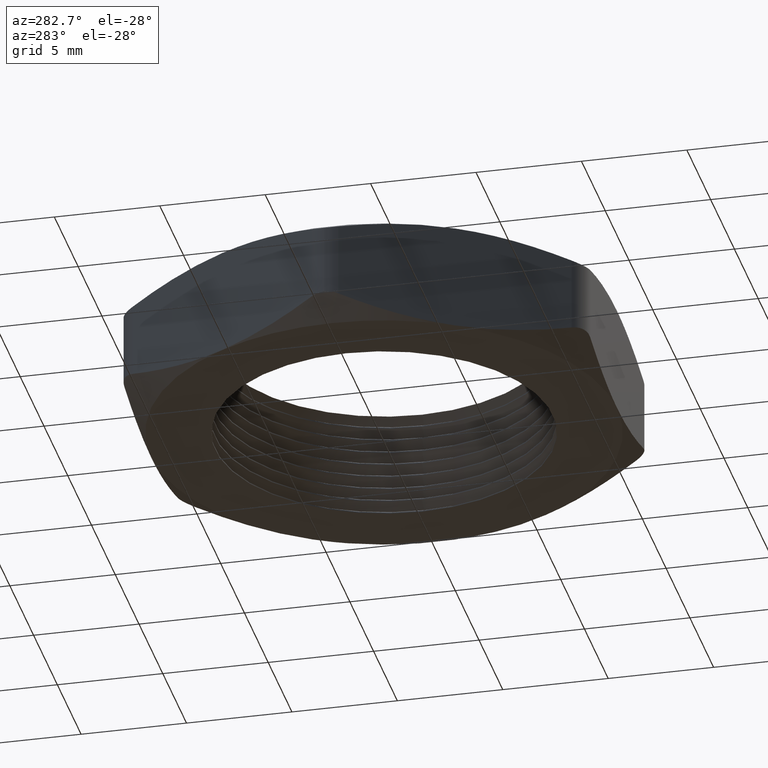
[diagram: clean part render]
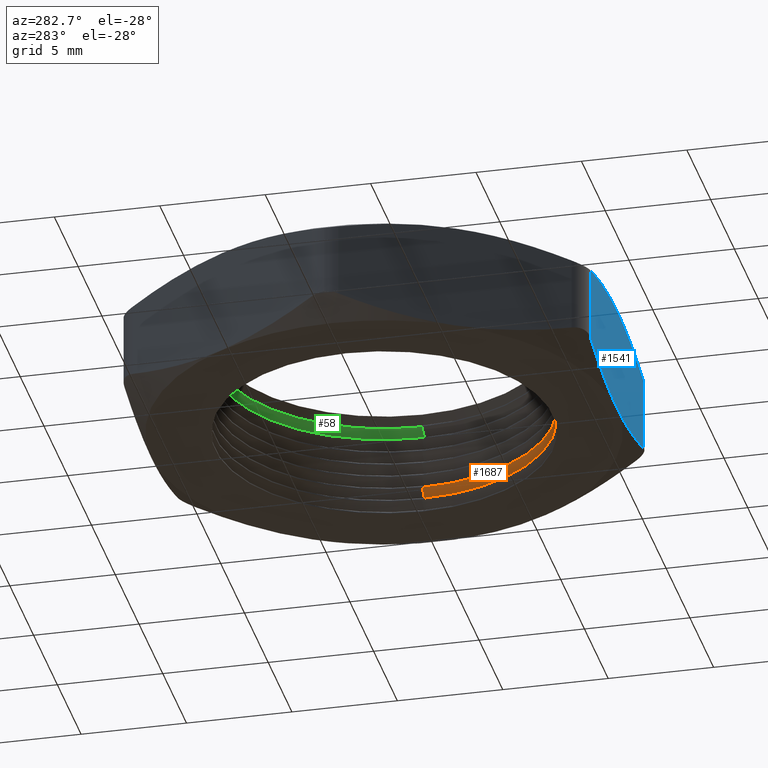
[diagram: same view with three faces highlighted in distinct colors, each labeled with its STEP entity id]
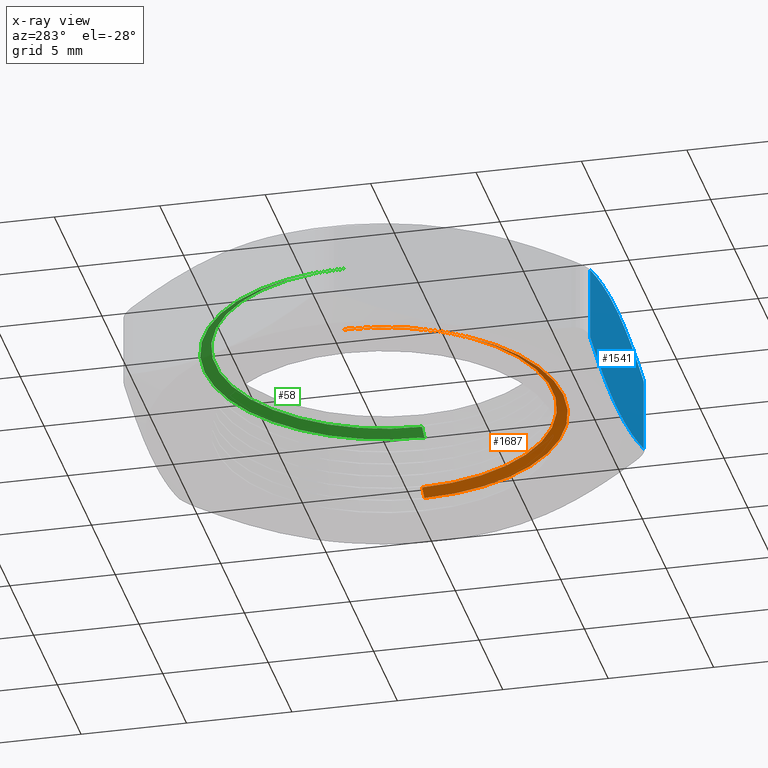
[diagram: x-ray of the same camera — body ghosted, the three highlighted faces saturated]
A machine part, auxiliary view with three faces highlighted in distinct colors.
The next image is the same camera in x-ray (body ghosted, the three faces saturated) — at least one of them is partly hidden behind the body in this view.
Their STEP definitions:

[orange] entity #1687 — the highlighted conical surface has half-angle 60 deg.
#453 = CARTESIAN_POINT ( 'NONE',  ( 0.3349999999999999600, 4.102566777143632800E-017, 0.03845299461620780400 ) ) ;
#454 = DIRECTION ( 'NONE',  ( 1.000000000000000000, 0.0000000000000000000, 0.0000000000000000000 ) ) ;
#455 = DIRECTION ( 'NONE',  ( 0.0000000000000000000, 0.0000000000000000000, 1.000000000000000000 ) ) ;
#466 = CARTESIAN_POINT ( 'NONE',  ( 0.0000000000000000000, 0.0000000000000000000, 0.03845299461620780400 ) ) ;
#467 = AXIS2_PLACEMENT_3D ( 'NONE', #466, #455, #454 ) ;
#469 = CIRCLE ( 'NONE', #467, 0.3349999999999999600 ) ;
#498 = DIRECTION ( 'NONE',  ( -1.000000000000000000, 0.0000000000000000000, 0.0000000000000000000 ) ) ;
#499 = DIRECTION ( 'NONE',  ( 0.0000000000000000000, 0.0000000000000000000, -1.000000000000000000 ) ) ;
#500 = CARTESIAN_POINT ( 'NONE',  ( 0.0000000000000000000, 0.0000000000000000000, 0.03845299461620780400 ) ) ;
#501 = AXIS2_PLACEMENT_3D ( 'NONE', #500, #499, #498 ) ;
#502 = CONICAL_SURFACE ( 'NONE', #501, 0.3349999999999999600, 1.047197551196609000 ) ;
#504 = FACE_OUTER_BOUND ( 'NONE', #1688, .T. ) ;
#541 = DIRECTION ( 'NONE',  ( 0.8660254037844441500, 1.060575238724913900E-016, -0.4999999999999902300 ) ) ;
#542 = VECTOR ( 'NONE', #541, 39.37007874015748100 ) ;
#543 = CARTESIAN_POINT ( 'NONE',  ( 0.3349999999999999600, 4.102566777143632800E-017, 0.03845299461620780400 ) ) ;
#544 = LINE ( 'NONE', #543, #542 ) ;
#545 = CARTESIAN_POINT ( 'NONE',  ( 0.3150000000000000000, 3.857637417314162700E-017, 0.05000000000000001000 ) ) ;
#546 = CARTESIAN_POINT ( 'NONE',  ( -0.3150000000000000000, 0.0000000000000000000, 0.05000000000000001000 ) ) ;
#547 = DIRECTION ( 'NONE',  ( 1.000000000000000000, 0.0000000000000000000, 0.0000000000000000000 ) ) ;
#548 = DIRECTION ( 'NONE',  ( 0.0000000000000000000, 0.0000000000000000000, 1.000000000000000000 ) ) ;
#549 = CARTESIAN_POINT ( 'NONE',  ( 0.0000000000000000000, 0.0000000000000000000, 0.05000000000000001000 ) ) ;
#550 = AXIS2_PLACEMENT_3D ( 'NONE', #549, #548, #547 ) ;
#551 = CIRCLE ( 'NONE', #550, 0.3150000000000000000 ) ;
#710 = DIRECTION ( 'NONE',  ( -0.8660254037844441500, 0.0000000000000000000, -0.4999999999999902300 ) ) ;
#711 = VECTOR ( 'NONE', #710, 39.37007874015748100 ) ;
#712 = CARTESIAN_POINT ( 'NONE',  ( -0.3349999999999999600, 0.0000000000000000000, 0.03845299461620780400 ) ) ;
#713 = LINE ( 'NONE', #712, #711 ) ;
#714 = CARTESIAN_POINT ( 'NONE',  ( -0.3349999999999999600, 0.0000000000000000000, 0.03845299461620780400 ) ) ;
#1681 = EDGE_CURVE ( 'NONE', #1798, #1682, #469, .T. ) ;
#1682 = VERTEX_POINT ( 'NONE', #453 ) ;
#1687 = ADVANCED_FACE ( 'NONE', ( #504 ), #502, .F. ) ;
#1688 = EDGE_LOOP ( 'NONE', ( #1723, #1727, #1729, #1800 ) ) ;
#1723 = ORIENTED_EDGE ( 'NONE', *, *, #1724, .T. ) ;
#1724 = EDGE_CURVE ( 'NONE', #1725, #1726, #551, .T. ) ;
#1725 = VERTEX_POINT ( 'NONE', #546 ) ;
#1726 = VERTEX_POINT ( 'NONE', #545 ) ;
#1727 = ORIENTED_EDGE ( 'NONE', *, *, #1728, .T. ) ;
#1728 = EDGE_CURVE ( 'NONE', #1726, #1682, #544, .T. ) ;
#1729 = ORIENTED_EDGE ( 'NONE', *, *, #1681, .F. ) ;
#1798 = VERTEX_POINT ( 'NONE', #714 ) ;
#1800 = ORIENTED_EDGE ( 'NONE', *, *, #1802, .F. ) ;
#1802 = EDGE_CURVE ( 'NONE', #1725, #1798, #713, .T. ) ;

[blue] entity #1541 — the highlighted planar face has unit normal (-0, 1, 0).
#142 = CARTESIAN_POINT ( 'NONE',  ( 0.2222798536380058400, -0.4349999999999998900, 0.1691111204119871100 ) ) ;
#143 = CARTESIAN_POINT ( 'NONE',  ( 0.1862242521620563200, -0.4349999999999998900, 0.1785832289477872800 ) ) ;
#144 = CARTESIAN_POINT ( 'NONE',  ( 0.1497328604316976500, -0.4349999999999997800, 0.1863488499654419600 ) ) ;
#145 = CARTESIAN_POINT ( 'NONE',  ( 0.07552621429141973000, -0.4349999999999998900, 0.1970876342404774600 ) ) ;
#146 = CARTESIAN_POINT ( 'NONE',  ( 0.03753014323917934500, -0.4349999999999999400, 0.2000000000000000900 ) ) ;
#147 = CARTESIAN_POINT ( 'NONE',  ( 5.914624404477000200E-017, -0.4349999999999998900, 0.2000000000000000100 ) ) ;
#149 = CARTESIAN_POINT ( 'NONE',  ( 5.914624404477000200E-017, -0.4349999999999998900, 0.2000000000000000100 ) ) ;
#150 = B_SPLINE_CURVE_WITH_KNOTS ( 'NONE', 3,
 ( #147, #146, #145, #144, #143, #142 ),
 .UNSPECIFIED., .F., .F.,
 ( 4, 2, 4 ),
 ( 0.01847875069203570900, 0.02132960203524542800, 0.02418045337845514700 ),
 .UNSPECIFIED. ) ;
#151 = CARTESIAN_POINT ( 'NONE',  ( 0.2222798536380058400, -0.4349999999999998900, 0.1691111204119871100 ) ) ;
#152 = CARTESIAN_POINT ( 'NONE',  ( 0.2222798536380058700, -0.4349999999999998900, 0.03088887958801292400 ) ) ;
#153 = DIRECTION ( 'NONE',  ( -1.000000000000000000, -1.359683771144138300E-016, 0.0000000000000000000 ) ) ;
#154 = DIRECTION ( 'NONE',  ( -1.359683771144138300E-016, 1.000000000000000000, 0.0000000000000000000 ) ) ;
#155 = CARTESIAN_POINT ( 'NONE',  ( -0.2511473670974875300, -0.4349999999999999400, 0.2000000000000000100 ) ) ;
#156 = AXIS2_PLACEMENT_3D ( 'NONE', #155, #154, #153 ) ;
#165 = PLANE ( 'NONE',  #156 ) ;
#167 = FACE_OUTER_BOUND ( 'NONE', #1542, .T. ) ;
#255 = CARTESIAN_POINT ( 'NONE',  ( 5.914624404477002600E-017, -0.4350000000000000500, 0.0000000000000000000 ) ) ;
#256 = CARTESIAN_POINT ( 'NONE',  ( 0.03753014323917942100, -0.4349999999999998900, -9.804239625699381800E-017 ) ) ;
#257 = CARTESIAN_POINT ( 'NONE',  ( 0.07552621429141973000, -0.4349999999999997800, 0.002912365759522538300 ) ) ;
#258 = CARTESIAN_POINT ( 'NONE',  ( 0.1497328604316978100, -0.4349999999999998900, 0.01365115003455805700 ) ) ;
#259 = CARTESIAN_POINT ( 'NONE',  ( 0.1862242521620564600, -0.4349999999999999400, 0.02141677105221279100 ) ) ;
#260 = CARTESIAN_POINT ( 'NONE',  ( 0.2222798536380058700, -0.4349999999999998900, 0.03088887958801292400 ) ) ;
#261 = VECTOR ( 'NONE', #312, 39.37007874015748100 ) ;
#262 = CARTESIAN_POINT ( 'NONE',  ( 0.2222798536380058400, -0.4349999999999998900, 0.2000000000000000100 ) ) ;
#263 = LINE ( 'NONE', #262, #261 ) ;
#264 = CARTESIAN_POINT ( 'NONE',  ( 5.914624404477002600E-017, -0.4350000000000000500, 0.0000000000000000000 ) ) ;
#265 = B_SPLINE_CURVE_WITH_KNOTS ( 'NONE', 3,
 ( #260, #259, #258, #257, #256, #255 ),
 .UNSPECIFIED., .F., .F.,
 ( 4, 2, 4 ),
 ( 0.03248670147795788800, 0.03533643441563486000, 0.03818616735331183100 ),
 .UNSPECIFIED. ) ;
#312 = DIRECTION ( 'NONE',  ( 0.0000000000000000000, 0.0000000000000000000, 1.000000000000000000 ) ) ;
#806 = CARTESIAN_POINT ( 'NONE',  ( 5.914624404477000200E-017, -0.4349999999999998900, 0.2000000000000000100 ) ) ;
#807 = CARTESIAN_POINT ( 'NONE',  ( -0.03754142656885314100, -0.4350000000000000000, 0.2000000000000001500 ) ) ;
#808 = CARTESIAN_POINT ( 'NONE',  ( -0.07481306858774552900, -0.4350000000000000500, 0.1971556570366345400 ) ) ;
#809 = CARTESIAN_POINT ( 'NONE',  ( -0.1303676137523881500, -0.4350000000000000000, 0.1891683237292944900 ) ) ;
#810 = CARTESIAN_POINT ( 'NONE',  ( -0.1488276767562098600, -0.4349999999999999400, 0.1858931326932102600 ) ) ;
#811 = CARTESIAN_POINT ( 'NONE',  ( -0.1856455972818111800, -0.4349999999999999400, 0.1782651965368421700 ) ) ;
#812 = CARTESIAN_POINT ( 'NONE',  ( -0.2040460030624153800, -0.4350000000000000500, 0.1739013056982529900 ) ) ;
#813 = CARTESIAN_POINT ( 'NONE',  ( -0.2222798536380078100, -0.4349999999999999400, 0.1691111204119866200 ) ) ;
#817 = B_SPLINE_CURVE_WITH_KNOTS ( 'NONE', 3,
 ( #813, #812, #811, #810, #809, #808, #807, #806 ),
 .UNSPECIFIED., .F., .F.,
 ( 4, 2, 2, 4 ),
 ( 0.01277533380509475600, 0.01420118802682999500, 0.01562704224856523200, 0.01847875069203570900 ),
 .UNSPECIFIED. ) ;
#1255 = CARTESIAN_POINT ( 'NONE',  ( -0.2222798536380077000, -0.4349999999999999400, 0.03088887958801339600 ) ) ;
#1256 = CARTESIAN_POINT ( 'NONE',  ( -0.2040460030624155800, -0.4350000000000000500, 0.02609869430174714300 ) ) ;
#1257 = CARTESIAN_POINT ( 'NONE',  ( -0.1856455972818111500, -0.4350000000000000500, 0.02173480346315781500 ) ) ;
#1258 = CARTESIAN_POINT ( 'NONE',  ( -0.1488276767562097300, -0.4349999999999998900, 0.01410686730678981300 ) ) ;
#1259 = CARTESIAN_POINT ( 'NONE',  ( -0.1303676137523879800, -0.4349999999999999400, 0.01083167627070551200 ) ) ;
#1260 = CARTESIAN_POINT ( 'NONE',  ( -0.07481306858774529300, -0.4349999999999999400, 0.002844342963365563700 ) ) ;
#1261 = CARTESIAN_POINT ( 'NONE',  ( -0.03754142656885309900, -0.4349999999999996100, -9.994321822524163000E-017 ) ) ;
#1262 = CARTESIAN_POINT ( 'NONE',  ( 5.914624404477002600E-017, -0.4350000000000000500, 0.0000000000000000000 ) ) ;
#1264 = B_SPLINE_CURVE_WITH_KNOTS ( 'NONE', 3,
 ( #1262, #1261, #1260, #1259, #1258, #1257, #1256, #1255 ),
 .UNSPECIFIED., .F., .F.,
 ( 4, 2, 2, 4 ),
 ( 0.03818616735331183100, 0.04103675705500414700, 0.04246205190585031200, 0.04388734675669647000 ),
 .UNSPECIFIED. ) ;
#1360 = CARTESIAN_POINT ( 'NONE',  ( -0.2222798536380078100, -0.4349999999999999400, 0.1691111204119866200 ) ) ;
#1387 = DIRECTION ( 'NONE',  ( 0.0000000000000000000, 0.0000000000000000000, -1.000000000000000000 ) ) ;
#1388 = VECTOR ( 'NONE', #1387, 39.37007874015748100 ) ;
#1389 = CARTESIAN_POINT ( 'NONE',  ( -0.2222798536380062000, -0.4349999999999999400, 0.2000000000000000100 ) ) ;
#1390 = LINE ( 'NONE', #1389, #1388 ) ;
#1433 = CARTESIAN_POINT ( 'NONE',  ( -0.2222798536380077000, -0.4349999999999999400, 0.03088887958801339600 ) ) ;
#1541 = ADVANCED_FACE ( 'NONE', ( #167 ), #165, .F. ) ;
#1542 = EDGE_LOOP ( 'NONE', ( #1543, #1599, #1546, #1549, #2186, #2117 ) ) ;
#1543 = ORIENTED_EDGE ( 'NONE', *, *, #1597, .F. ) ;
#1544 = VERTEX_POINT ( 'NONE', #152 ) ;
#1545 = VERTEX_POINT ( 'NONE', #151 ) ;
#1546 = ORIENTED_EDGE ( 'NONE', *, *, #1547, .F. ) ;
#1547 = EDGE_CURVE ( 'NONE', #1548, #1545, #150, .T. ) ;
#1548 = VERTEX_POINT ( 'NONE', #149 ) ;
#1549 = ORIENTED_EDGE ( 'NONE', *, *, #1869, .F. ) ;
#1597 = EDGE_CURVE ( 'NONE', #1544, #1598, #265, .T. ) ;
#1598 = VERTEX_POINT ( 'NONE', #264 ) ;
#1599 = ORIENTED_EDGE ( 'NONE', *, *, #1600, .T. ) ;
#1600 = EDGE_CURVE ( 'NONE', #1544, #1545, #263, .T. ) ;
#1869 = EDGE_CURVE ( 'NONE', #2183, #1548, #817, .T. ) ;
#2095 = EDGE_CURVE ( 'NONE', #1598, #2197, #1264, .T. ) ;
#2117 = ORIENTED_EDGE ( 'NONE', *, *, #2095, .F. ) ;
#2183 = VERTEX_POINT ( 'NONE', #1360 ) ;
#2186 = ORIENTED_EDGE ( 'NONE', *, *, #2191, .T. ) ;
#2191 = EDGE_CURVE ( 'NONE', #2183, #2197, #1390, .T. ) ;
#2197 = VERTEX_POINT ( 'NONE', #1433 ) ;

[green] entity #58 — the highlighted conical surface has half-angle 60 deg.
#20 = EDGE_CURVE ( 'NONE', #1953, #1950, #2198, .T. ) ;
#39 = ORIENTED_EDGE ( 'NONE', *, *, #1955, .T. ) ;
#40 = ORIENTED_EDGE ( 'NONE', *, *, #20, .F. ) ;
#43 = ORIENTED_EDGE ( 'NONE', *, *, #1516, .T. ) ;
#58 = ADVANCED_FACE ( 'NONE', ( #2257 ), #2258, .F. ) ;
#59 = EDGE_LOOP ( 'NONE', ( #67, #43, #39, #40 ) ) ;
#67 = ORIENTED_EDGE ( 'NONE', *, *, #1927, .F. ) ;
#97 = DIRECTION ( 'NONE',  ( 1.000000000000000000, 0.0000000000000000000, 0.0000000000000000000 ) ) ;
#98 = DIRECTION ( 'NONE',  ( 0.0000000000000000000, 0.0000000000000000000, 1.000000000000000000 ) ) ;
#99 = CARTESIAN_POINT ( 'NONE',  ( 0.0000000000000000000, 0.0000000000000000000, 0.1750000000000000200 ) ) ;
#100 = AXIS2_PLACEMENT_3D ( 'NONE', #99, #98, #97 ) ;
#101 = CIRCLE ( 'NONE', #100, 0.3150000000000000000 ) ;
#956 = DIRECTION ( 'NONE',  ( 0.8660254037844441500, 1.060575238724913900E-016, -0.4999999999999902300 ) ) ;
#957 = VECTOR ( 'NONE', #956, 39.37007874015748100 ) ;
#958 = CARTESIAN_POINT ( 'NONE',  ( 0.3349999999999999600, 4.102566777143632800E-017, 0.1634529946162078000 ) ) ;
#959 = LINE ( 'NONE', #958, #957 ) ;
#969 = DIRECTION ( 'NONE',  ( -0.8660254037844441500, 0.0000000000000000000, -0.4999999999999902300 ) ) ;
#970 = VECTOR ( 'NONE', #969, 39.37007874015748100 ) ;
#971 = CARTESIAN_POINT ( 'NONE',  ( -0.3349999999999999600, 0.0000000000000000000, 0.1634529946162078000 ) ) ;
#972 = LINE ( 'NONE', #971, #970 ) ;
#973 = CARTESIAN_POINT ( 'NONE',  ( 0.3349999999999999600, 4.102566777143632800E-017, 0.1634529946162078000 ) ) ;
#979 = CARTESIAN_POINT ( 'NONE',  ( -0.3349999999999999600, 0.0000000000000000000, 0.1634529946162078000 ) ) ;
#999 = CARTESIAN_POINT ( 'NONE',  ( 0.3150000000000000000, 3.857637417314162700E-017, 0.1750000000000000200 ) ) ;
#1000 = CARTESIAN_POINT ( 'NONE',  ( -0.3150000000000000000, 0.0000000000000000000, 0.1750000000000000200 ) ) ;
#1516 = EDGE_CURVE ( 'NONE', #1970, #1969, #101, .T. ) ;
#1927 = EDGE_CURVE ( 'NONE', #1970, #1953, #959, .T. ) ;
#1950 = VERTEX_POINT ( 'NONE', #979 ) ;
#1953 = VERTEX_POINT ( 'NONE', #973 ) ;
#1955 = EDGE_CURVE ( 'NONE', #1969, #1950, #972, .T. ) ;
#1969 = VERTEX_POINT ( 'NONE', #1000 ) ;
#1970 = VERTEX_POINT ( 'NONE', #999 ) ;
#2198 = CIRCLE ( 'NONE', #2214, 0.3349999999999999600 ) ;
#2207 = CARTESIAN_POINT ( 'NONE',  ( 0.0000000000000000000, 0.0000000000000000000, 0.1634529946162078000 ) ) ;
#2212 = DIRECTION ( 'NONE',  ( 1.000000000000000000, 0.0000000000000000000, 0.0000000000000000000 ) ) ;
#2213 = DIRECTION ( 'NONE',  ( 0.0000000000000000000, 0.0000000000000000000, 1.000000000000000000 ) ) ;
#2214 = AXIS2_PLACEMENT_3D ( 'NONE', #2207, #2213, #2212 ) ;
#2249 = DIRECTION ( 'NONE',  ( 0.0000000000000000000, 0.0000000000000000000, -1.000000000000000000 ) ) ;
#2250 = CARTESIAN_POINT ( 'NONE',  ( 0.0000000000000000000, 0.0000000000000000000, 0.1634529946162078000 ) ) ;
#2257 = FACE_OUTER_BOUND ( 'NONE', #59, .T. ) ;
#2258 = CONICAL_SURFACE ( 'NONE', #2263, 0.3349999999999999600, 1.047197551196609000 ) ;
#2259 = DIRECTION ( 'NONE',  ( -1.000000000000000000, 0.0000000000000000000, 0.0000000000000000000 ) ) ;
#2263 = AXIS2_PLACEMENT_3D ( 'NONE', #2250, #2249, #2259 ) ;